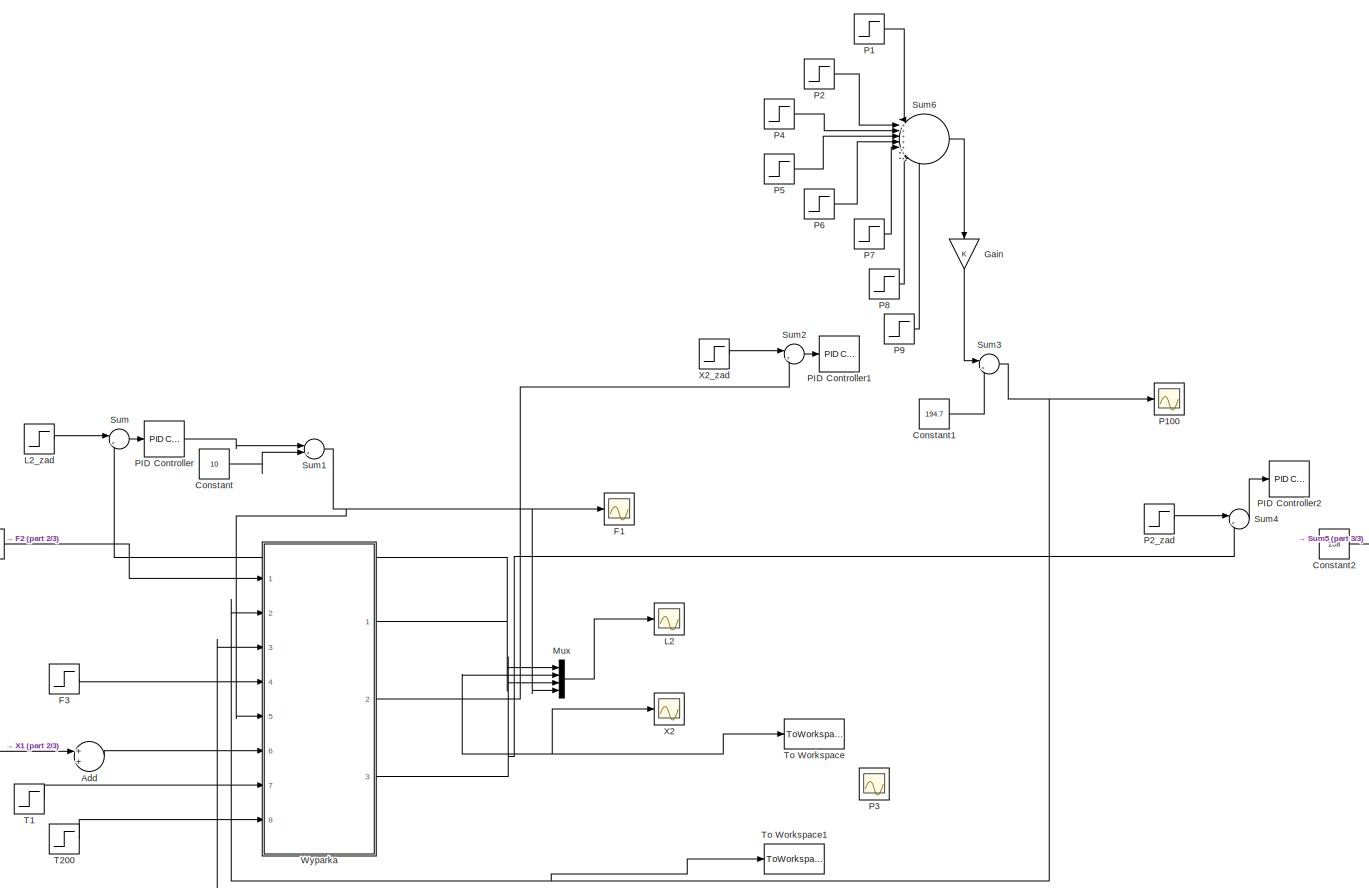
[diagram: root canvas - part 1/3, most of the canvas]
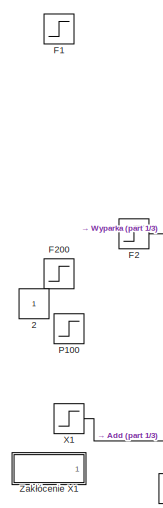
[diagram: root canvas - part 2/3, middle left region]
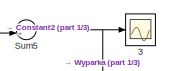
[diagram: root canvas - part 3/3, middle right region]
MODEL slx_19b76abad473
KIND model
CONFIG AbsTol = auto
CONFIG EnableMultiTasking = on
CONFIG FixedStep = 0.1
CONFIG MaxStep = auto
CONFIG MinStep = auto
CONFIG RelTol = 1e-6
CONFIG SampleTimeConstraint = Unconstrained
CONFIG Solver = ode45
CONFIG SolverName = ode45
CONFIG StartTime = 0.0
CONFIG StopTime = 1
BLOCK [Constant] 2
  IOType = siggen
BLOCK [Scope] 3 
  Floating = off
  NumInputPorts = 1
  Ports = [1]
  ScopeSpecificationString = Simulink.scopes.TimeScopeBlockCfg('CurrentConfiguration', extmgr.ConfigurationSet(extmgr.Configuration('Core','General UI',true),extmgr.Configuration('Core','Source UI',true),extmgr.Configuration('Sources','WiredSimulink',true,'DataLoggingSaveFormat','StructureWithTime','DataLoggingDecimation','1','DataLoggingDecimateData',true,'DataLoggingVariableName','ScopeData2'),extmgr.Configuration('Visuals'...<+1678ch>
BLOCK [Sum] Add
  InputSameDT = off
  OutDataTypeStr = Inherit: Inherit via internal rule
  Ports = [2, 1]
  SaturateOnIntegerOverflow = off
BLOCK [Constant] Constant
  Value = 10
BLOCK [Constant] Constant1
  Value = 194.7
BLOCK [Constant] Constant2
  Value = 208
BLOCK [Step] F1
  After = 9.9
  Before = 10
  SampleTime = 0
  Time = 0
BLOCK [Scope] F1 
  Floating = off
  NumInputPorts = 1
  Ports = [1]
  ScopeSpecificationString = Simulink.scopes.TimeScopeBlockCfg('CurrentConfiguration', extmgr.ConfigurationSet(extmgr.Configuration('Core','General UI',true),extmgr.Configuration('Core','Source UI',true),extmgr.Configuration('Sources','WiredSimulink',true,'DataLoggingSaveFormat','StructureWithTime','DataLoggingDecimation','1','DataLoggingDecimateData',true,'DataLoggingVariableName','ScopeData3'),extmgr.Configuration('Visuals'...<+1666ch>
BLOCK [Step] F2
  After = 2
  Before = 2
  SampleTime = 0
  Time = 0
BLOCK [Step] F200
  After = 100
  Before = 208
  SampleTime = 0
  Time = 0
BLOCK [Step] F3
  After = 50
  Before = 50
  SampleTime = 0
  Time = 0
BLOCK [Gain] Gain
  OutDataTypeStr = Inherit: Inherit via internal rule
  ParamDataTypeStr = Inherit: Inherit via internal rule
  SaturateOnIntegerOverflow = off
BLOCK [Scope] L2
  Floating = off
  NumInputPorts = 1
  Ports = [1]
  ScopeSpecificationString = Simulink.scopes.TimeScopeBlockCfg('CurrentConfiguration', extmgr.ConfigurationSet(extmgr.Configuration('Core','General UI',true),extmgr.Configuration('Core','Source UI',true),extmgr.Configuration('Sources','WiredSimulink',true,'DataLoggingSaveFormat','StructureWithTime','DataLoggingDecimation','1','DataLoggingDecimateData',true),extmgr.Configuration('Visuals','Time Domain',true,'SerializedDisplays...<+1717ch>
BLOCK [Step] L2_zad
  Before = 1
  SampleTime = 0
  Time = 0
BLOCK [Mux] Mux
  DisplayOption = bar
  Ports = [4, 1]
BLOCK [Step] P1
  After = 19.47
  SampleTime = 0
  Time = 300
BLOCK [Step] P100
  After = 194.7
  Before = 194.7
  SampleTime = 0
  Time = 0
BLOCK [Scope] P100 
  Floating = off
  NumInputPorts = 1
  Ports = [1]
  ScopeSpecificationString = Simulink.scopes.TimeScopeBlockCfg('CurrentConfiguration', extmgr.ConfigurationSet(extmgr.Configuration('Core','General UI',true),extmgr.Configuration('Core','Source UI',true),extmgr.Configuration('Sources','WiredSimulink',true,'DataLoggingSaveFormat','StructureWithTime','DataLoggingDecimation','1','DataLoggingDecimateData',true,'DataLoggingVariableName','ScopeData1'),extmgr.Configuration('Visuals'...<+1691ch>
BLOCK [Step] P2
  After = 19.47
  SampleTime = 0
  Time = 500
BLOCK [Step] P2_zad
  After = 50
  Before = 50
  SampleTime = 0
  Time = 0
BLOCK [Scope] P3
  Floating = off
  NumInputPorts = 1
  Ports = [1]
  ScopeSpecificationString = Simulink.scopes.TimeScopeBlockCfg('CurrentConfiguration', extmgr.ConfigurationSet(extmgr.Configuration('Core','General UI',true),extmgr.Configuration('Core','Source UI',true),extmgr.Configuration('Sources','WiredSimulink',true,'DataLoggingVariableName','ScopeData1','DataLoggingSaveFormat','StructureWithTime','DataLoggingDecimation','1','DataLoggingDecimateData',true),extmgr.Configuration('Visuals'...<+1716ch>
BLOCK [Step] P4
  After = -19.47
  SampleTime = 0
  Time = 700
BLOCK [Step] P5
  After = -19.47
  SampleTime = 0
  Time = 900
BLOCK [Step] P6
  After = -19.47
  SampleTime = 0
  Time = 1100
BLOCK [Step] P7
  After = -19.47
  SampleTime = 0
  Time = 1300
BLOCK [Step] P8
  After = 19.47
  SampleTime = 0
  Time = 1500
BLOCK [Step] P9
  After = 19.47
  SampleTime = 0
  Time = 1700
BLOCK [Reference] PID Controller  REF=simulink/Continuous/PID Controller
  Ports = [1, 1]
  SourceBlock = simulink/Continuous/PID Controller
  SourceProductBaseCode = SL
  SourceProductName = Simulink
  SourceType = PID 1dof
BLOCK [Reference] PID Controller1  REF=simulink/Continuous/PID Controller
  Ports = [1, 1]
  SourceBlock = simulink/Continuous/PID Controller
  SourceProductBaseCode = SL
  SourceProductName = Simulink
  SourceType = PID 1dof
BLOCK [Reference] PID Controller2  REF=simulink/Continuous/PID Controller
  Ports = [1, 1]
  SourceBlock = simulink/Continuous/PID Controller
  SourceProductBaseCode = SL
  SourceProductName = Simulink
  SourceType = PID 1dof
BLOCK [Sum] Sum
  IconShape = round
  InputSameDT = off
  Inputs = |+-
  OutDataTypeStr = Inherit: Inherit via internal rule
  Ports = [2, 1]
  SaturateOnIntegerOverflow = off
BLOCK [Sum] Sum1
  IconShape = round
  InputSameDT = off
  Inputs = |++
  OutDataTypeStr = Inherit: Inherit via internal rule
  Ports = [2, 1]
  SaturateOnIntegerOverflow = off
BLOCK [Sum] Sum2
  IconShape = round
  InputSameDT = off
  Inputs = |+-
  OutDataTypeStr = Inherit: Inherit via internal rule
  Ports = [2, 1]
  SaturateOnIntegerOverflow = off
BLOCK [Sum] Sum3
  IconShape = round
  InputSameDT = off
  Inputs = |++
  OutDataTypeStr = Inherit: Inherit via internal rule
  Ports = [2, 1]
  SaturateOnIntegerOverflow = off
BLOCK [Sum] Sum4
  IconShape = round
  InputSameDT = off
  Inputs = |+-
  OutDataTypeStr = Inherit: Inherit via internal rule
  Ports = [2, 1]
  SaturateOnIntegerOverflow = off
BLOCK [Sum] Sum5
  IconShape = round
  InputSameDT = off
  Inputs = |++
  OutDataTypeStr = Inherit: Inherit via internal rule
  Ports = [2, 1]
  SaturateOnIntegerOverflow = off
BLOCK [Sum] Sum6
  IconShape = round
  InputSameDT = off
  Inputs = |++++++++
  OutDataTypeStr = Inherit: Inherit via internal rule
  Ports = [8, 1]
  SaturateOnIntegerOverflow = off
BLOCK [Step] T1
  After = 40
  Before = 40
  SampleTime = 0
  Time = 0
BLOCK [Step] T200
  After = 25
  Before = 25
  SampleTime = 0
  Time = 0
BLOCK [ToWorkspace] To Workspace
  FixptAsFi = on
  MaxDataPoints = inf
  Ports = [1]
  SampleTime = -1
  Save2DSignal = 3-D array (concatenate along third dimension)
  VariableName = x2
BLOCK [ToWorkspace] To Workspace1
  FixptAsFi = on
  MaxDataPoints = inf
  Ports = [1]
  SampleTime = -1
  Save2DSignal = 3-D array (concatenate along third dimension)
  VariableName = p100
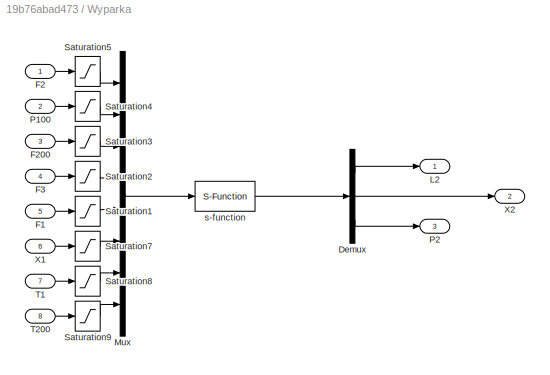
BLOCK [SubSystem] Wyparka
  Ports = [8, 3]
  RequestExecContextInheritance = off
BLOCK [Demux] Wyparka/Demux
  DisplayOption = bar
  Outputs = 3
  Ports = [1, 3]
BLOCK [Inport] Wyparka/F1
  IconDisplay = Port number
  Port = 5
BLOCK [Inport] Wyparka/F2
  IconDisplay = Port number
BLOCK [Inport] Wyparka/F200
  IconDisplay = Port number
  Port = 3
BLOCK [Inport] Wyparka/F3
  IconDisplay = Port number
  Port = 4
BLOCK [Outport] Wyparka/L2
  IconDisplay = Port number
BLOCK [Mux] Wyparka/Mux
  DisplayOption = bar
  Inputs = 8
  Ports = [8, 1]
BLOCK [Inport] Wyparka/P100
  IconDisplay = Port number
  Port = 2
BLOCK [Outport] Wyparka/P2
  IconDisplay = Port number
  Port = 3
BLOCK [Saturate] Wyparka/Saturation1
  InputPortMap = u0
  LowerLimit = 0
  Ports = [1, 1]
  UpperLimit = 20
BLOCK [Saturate] Wyparka/Saturation2
  InputPortMap = u0
  LowerLimit = 0
  Ports = [1, 1]
  UpperLimit = 100
BLOCK [Saturate] Wyparka/Saturation3
  InputPortMap = u0
  LowerLimit = 0
  Ports = [1, 1]
  UpperLimit = 400
BLOCK [Saturate] Wyparka/Saturation4
  InputPortMap = u0
  LowerLimit = 0
  Ports = [1, 1]
  UpperLimit = 400
BLOCK [Saturate] Wyparka/Saturation5
  InputPortMap = u0
  LowerLimit = 0
  Ports = [1, 1]
  UpperLimit = 4
BLOCK [Saturate] Wyparka/Saturation7
  InputPortMap = u0
  LowerLimit = 0
  Ports = [1, 1]
  UpperLimit = 100
BLOCK [Saturate] Wyparka/Saturation8
  InputPortMap = u0
  LowerLimit = 5
  Ports = [1, 1]
  UpperLimit = 90
BLOCK [Saturate] Wyparka/Saturation9
  InputPortMap = u0
  LowerLimit = 5
  Ports = [1, 1]
  UpperLimit = 90
BLOCK [Inport] Wyparka/T1
  IconDisplay = Port number
  Port = 7
BLOCK [Inport] Wyparka/T200
  IconDisplay = Port number
  Port = 8
BLOCK [Inport] Wyparka/X1
  IconDisplay = Port number
  Port = 6
BLOCK [Outport] Wyparka/X2
  IconDisplay = Port number
  Port = 2
BLOCK [S-Function] Wyparka/s-function
  EnableBusSupport = off
  FunctionName = sfunkcja
  Ports = [1, 1]
  SFcnIsStateOwnerBlock = off
  SFunctionDeploymentMode = off
BLOCK [Step] X1
  After = 5
  Before = 5
  SampleTime = 0
  Time = 0
BLOCK [Scope] X2
  Floating = off
  NumInputPorts = 1
  Ports = [1]
  ScopeSpecificationString = Simulink.scopes.TimeScopeBlockCfg('CurrentConfiguration', extmgr.ConfigurationSet(extmgr.Configuration('Core','General UI',true),extmgr.Configuration('Core','Source UI',true),extmgr.Configuration('Sources','WiredSimulink',true,'DataLoggingVariableName','ScopeData1','DataLoggingSaveFormat','StructureWithTime','DataLoggingDecimation','1','DataLoggingDecimateData',true),extmgr.Configuration('Visuals'...<+1769ch>
BLOCK [Step] X2_zad
  After = 25
  Before = 25
  SampleTime = 0
  Time = 0
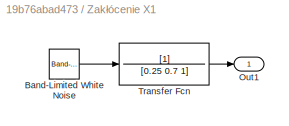
BLOCK [SubSystem] Zakłócenie X1
  Ports = [0, 1]
  RequestExecContextInheritance = off
BLOCK [Reference] Zakłócenie X1/Band-Limited White Noise  REF=simulink/Sources/Band-Limited
White Noise
  Ports = [0, 1]
  SourceBlock = simulink/Sources/Band-Limited\nWhite Noise
  SourceProductBaseCode = SL
  SourceProductName = Simulink
  SourceType = Band-Limited White Noise.
BLOCK [Outport] Zakłócenie X1/Out1
  IconDisplay = Port number
BLOCK [TransferFcn] Zakłócenie X1/Transfer Fcn
  Denominator = [0.25 0.7 1]
LINE Add:1 -> Wyparka:6
LINE Constant1:1 -> Sum3:2
LINE Constant2:1 -> Sum5:2
LINE Constant:1 -> Sum1:2
LINE F2:1 -> Wyparka:1
LINE F3:1 -> Wyparka:4
LINE Gain:1 -> Sum3:1
LINE L2_zad:1 -> Sum:1
LINE Mux:1 -> L2:1
LINE P1:1 -> Sum6:1
LINE P2:1 -> Sum6:2
LINE P2_zad:1 -> Sum4:1
LINE P4:1 -> Sum6:3
LINE P5:1 -> Sum6:4
LINE P6:1 -> Sum6:5
LINE P7:1 -> Sum6:6
LINE P8:1 -> Sum6:7
LINE P9:1 -> Sum6:8
LINE PID Controller:1 -> Sum1:1
NET Sum1:1 -> F1 :1, Mux:4, Wyparka:5
LINE Sum2:1 -> PID Controller1:1
NET Sum3:1 -> P100 :1, To Workspace1:1, Wyparka:2
LINE Sum4:1 -> PID Controller2:1
NET Sum5:1 -> 3 :1, Wyparka:3
LINE Sum6:1 -> Gain:1
LINE Sum:1 -> PID Controller:1
LINE T1:1 -> Wyparka:7
LINE T200:1 -> Wyparka:8
LINE Wyparka/Demux:1 -> Wyparka/L2:1
LINE Wyparka/Demux:2 -> Wyparka/X2:1
LINE Wyparka/Demux:3 -> Wyparka/P2:1
LINE Wyparka/F1:1 -> Wyparka/Saturation1:1
LINE Wyparka/F200:1 -> Wyparka/Saturation3:1
LINE Wyparka/F2:1 -> Wyparka/Saturation5:1
LINE Wyparka/F3:1 -> Wyparka/Saturation2:1
LINE Wyparka/Mux:1 -> Wyparka/s-function:1
LINE Wyparka/P100:1 -> Wyparka/Saturation4:1
LINE Wyparka/Saturation1:1 -> Wyparka/Mux:5
LINE Wyparka/Saturation2:1 -> Wyparka/Mux:4
LINE Wyparka/Saturation3:1 -> Wyparka/Mux:3
LINE Wyparka/Saturation4:1 -> Wyparka/Mux:2
LINE Wyparka/Saturation5:1 -> Wyparka/Mux:1
LINE Wyparka/Saturation7:1 -> Wyparka/Mux:6
LINE Wyparka/Saturation8:1 -> Wyparka/Mux:7
LINE Wyparka/Saturation9:1 -> Wyparka/Mux:8
LINE Wyparka/T1:1 -> Wyparka/Saturation8:1
LINE Wyparka/T200:1 -> Wyparka/Saturation9:1
LINE Wyparka/X1:1 -> Wyparka/Saturation7:1
LINE Wyparka/s-function:1 -> Wyparka/Demux:1
NET Wyparka:1 -> Mux:1, Sum:2
NET Wyparka:2 -> Mux:2, Sum2:2, To Workspace:1, X2:1
NET Wyparka:3 -> Mux:3, Sum4:2
LINE X1:1 -> Add:1
LINE X2_zad:1 -> Sum2:1
LINE Zakłócenie X1/Band-Limited White Noise:1 -> Zakłócenie X1/Transfer Fcn:1
LINE Zakłócenie X1/Transfer Fcn:1 -> Zakłócenie X1/Out1:1
note: NET lines group one-source signal fan-out (src -> all destinations, sorted); 1:1 wires keep LINE
